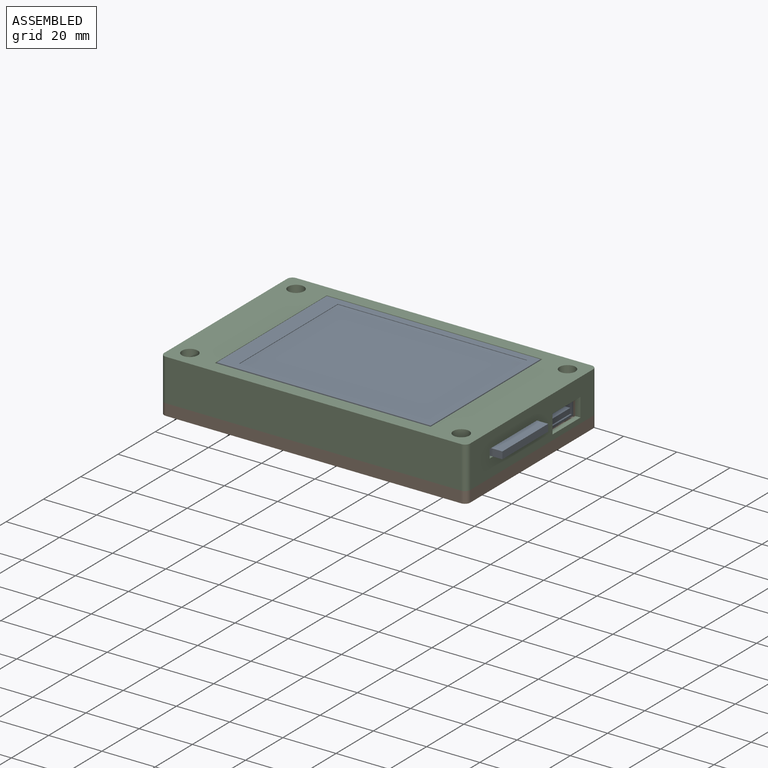
[diagram: assembled view]
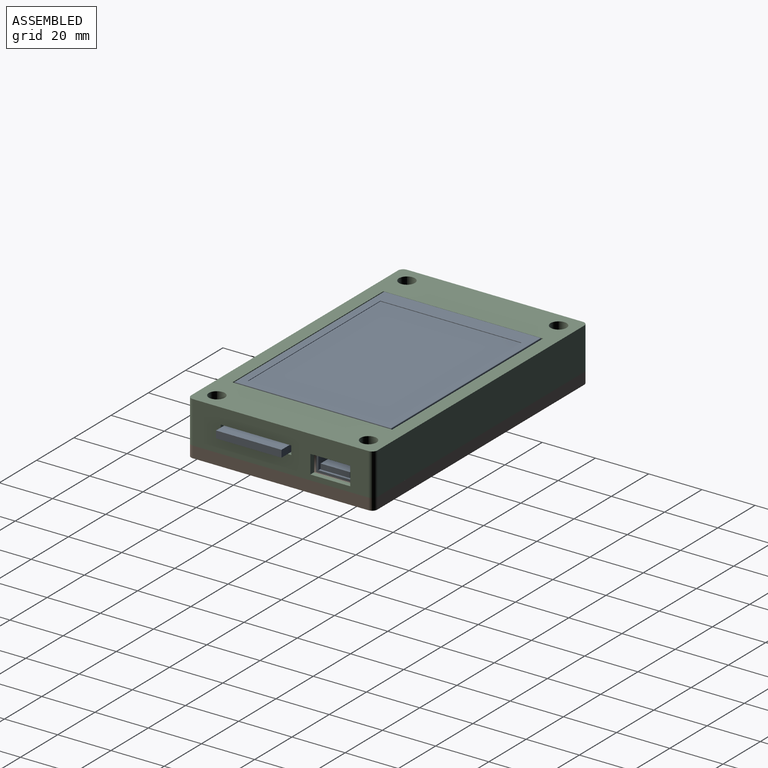
[diagram: assembled view, second angle]
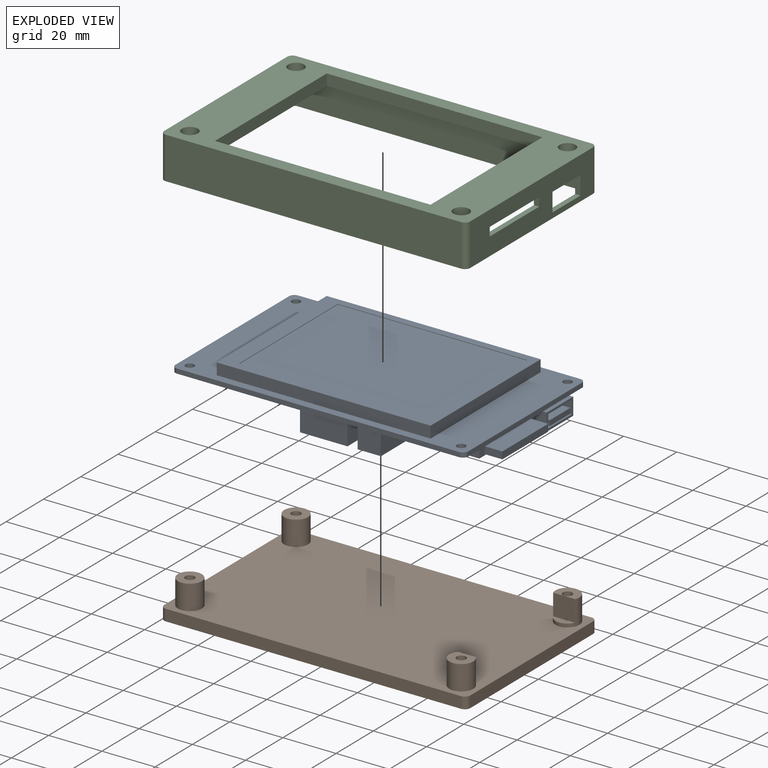
[diagram: exploded view]
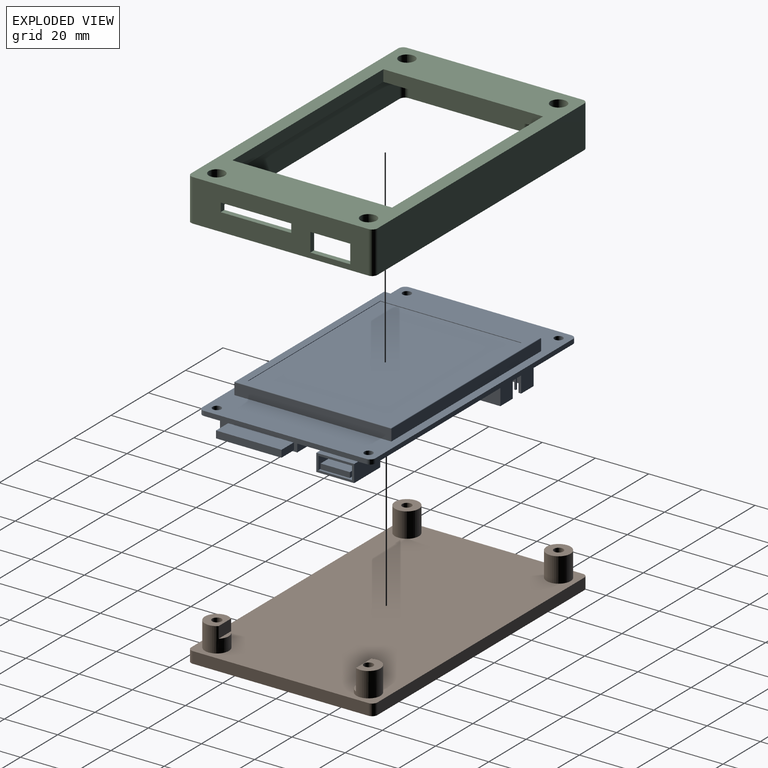
[diagram: exploded view, second angle]
ASSEMBLY  parts=3 mates=2
PART A: 267 faces, bbox 116.5x65x15.5 mm
  f0: plane 110x65mm, normal (0,0,-1), area 5634.7mm2, adj f1,f2,f3,f5,f7,f8,f9,f10
  f1: plane 3.5x0.85mm, normal (0,0,-1), area 1.3mm2, adj f0
  f2: plane 1.35x0.36mm, normal (0,0,-1), area 0.5mm2, adj f0
  f3: plane 3.5x2.65mm, normal (0,0,-1), area 2.4mm2, adj f0
  f4: plane 1.34x1.25mm, normal (0,0,-1), area 0.8mm2, adj f7
  f5: plane 3.59x2.24mm, normal (0,0,-1), area 2.6mm2, adj f0
  f6: plane 2.78x2.24mm, normal (0,0,-1), area 5.5mm2, adj f8
  f7: plane 3.5x3.32mm, normal (0,0,-1), area 2.7mm2, adj f0,f4
  f8: plane 3.5x2.87mm, normal (0,0,-1), area 3.4mm2, adj f0,f6
  f9: plane 3.68x2.06mm, normal (0,0,-1), area 2.4mm2, adj f0
  f10: plane 1.35x0.36mm, normal (0,0,-1), area 0.5mm2, adj f0
  f11: plane 3.5x1.84mm, normal (0,0,-1), area 1.6mm2, adj f0
  f12: plane 3.5x2.65mm, normal (0,0,-1), area 2.4mm2, adj f0
  f13: plane 3.5x1.97mm, normal (0,0,-1), area 2.9mm2, adj f0
  f14: plane 3.5x0.31mm, normal (0,0,-1), area 1.1mm2, adj f0
  f15: plane 3.5x1.71mm, normal (0,0,-1), area 2.1mm2, adj f0
  f16: plane 3.5x0.31mm, normal (0,0,-1), area 1.1mm2, adj f0
  f17: plane 4.08x3.5mm, normal (0,0,-1), area 3.8mm2, adj f0
  f18: plane 29.8x24.88mm, normal (0,0,-1), area 23.4mm2, adj f60,f99,f100,f101,f103,f105,f106
  f19: plane 14.24x6.5mm, normal (1,0,0), area 30.6mm2, adj f20,f21,f80,f81,f86,f87,f88,f89
  f20: plane 14x7.7mm, normal (0,-1,0), area 99.8mm2, adj f0,f19,f79,f80,f81,f82
  f21: plane 14x7.7mm, normal (0,1,0), area 99.8mm2, adj f0,f19,f79,f80,f81,f82
  f22: plane 2.41x1.19mm, normal (0,0,1), area 2.4mm2, adj f24
  f23: plane 110x65mm, normal (0,0,1), area 2307.1mm2, adj f24,f26,f27,f28,f29,f30,f31,f32
  f24: plane 3.12x1.98mm, normal (0,0,1), area 2.7mm2, adj f22,f23
  f25: plane 1.11x0.86mm, normal (0,0,1), area 0.5mm2, adj f27
  f26: plane 0.4x0.4mm, normal (0,0,1), area 0.2mm2, adj f23
  f27: plane 3.04x2.13mm, normal (0,0,1), area 2.6mm2, adj f23,f25
  f28: plane 3.08x2.96mm, normal (0,0,1), area 2.6mm2, adj f23
  f29: plane 3.08x1.9mm, normal (0,0,1), area 1.9mm2, adj f23
  f30: plane 2.45x0.28mm, normal (0,0,1), area 0.7mm2, adj f23
  f31: plane 3.08x2.02mm, normal (0,0,1), area 2.6mm2, adj f23
  f32: plane 3.12x1.98mm, normal (0,0,1), area 2.4mm2, adj f23
  f33: plane 3.08x2.41mm, normal (0,0,1), area 2mm2, adj f23
  f34: plane 3.08x2.05mm, normal (0,0,1), area 2.4mm2, adj f23
  f35: plane 3.08x2.41mm, normal (0,0,1), area 2mm2, adj f23
  f36: plane 3.16x2.41mm, normal (0,0,1), area 3.2mm2, adj f23
  f37: plane 3.08x2.53mm, normal (0,0,1), area 3.2mm2, adj f23
  f38: plane 1.26x0.55mm, normal (0,0,1), area 0.6mm2, adj f40
  f39: plane 3.08x2.96mm, normal (0,0,1), area 4.8mm2, adj f23
  f40: plane 2.33x2.05mm, normal (0,0,1), area 2.5mm2, adj f23,f38
  f41: plane 1.11x0.75mm, normal (0,0,1), area 0.6mm2, adj f44
  f42: plane 2.33x1.82mm, normal (0,0,1), area 2.2mm2, adj f23
  f43: plane 1.62x1.15mm, normal (0,0,1), area 1.5mm2, adj f45
  f44: plane 2.33x2.05mm, normal (0,0,1), area 2.7mm2, adj f23,f41
  f45: plane 3.12x1.94mm, normal (0,0,1), area 2.7mm2, adj f23,f43
  f46: plane 1.26x0.55mm, normal (0,0,1), area 0.6mm2, adj f48
  f47: plane 2.29x1.19mm, normal (0,0,1), area 1.2mm2, adj f23
  f48: plane 2.33x2.05mm, normal (0,0,1), area 2.5mm2, adj f23,f46
  f49: plane 1.11x0.75mm, normal (0,0,1), area 0.6mm2, adj f51
  f50: plane 3.08x1.81mm, normal (0,0,1), area 2.4mm2, adj f23
  f51: plane 2.33x2.05mm, normal (0,0,1), area 2.7mm2, adj f23,f49
  f52: plane 3.08x2.96mm, normal (0,0,1), area 4.8mm2, adj f23
  f53: cylinder r=2mm len=2mm, axis (0,0,-1), area 5.5mm2, adj f0,f23,f54,f60
  f54: plane 106x1.75mm, normal (0,1,0), area 185.5mm2, adj f0,f23,f53,f55
  f55: cylinder r=2mm len=2mm, axis (0,0,-1), area 5.5mm2, adj f0,f23,f54,f56
  f56: plane 61x1.75mm, normal (-1,0,0), area 106.8mm2, adj f0,f23,f55,f57
  f57: cylinder r=2mm len=2mm, axis (0,0,-1), area 5.5mm2, adj f0,f23,f56,f58
  f58: plane 106x1.75mm, normal (0,-1,0), area 185.5mm2, adj f0,f23,f57,f59
  f59: cylinder r=2mm len=2mm, axis (0,0,-1), area 5.5mm2, adj f0,f23,f58,f60
  f60: plane 61x4.75mm, normal (1,0,0), area 119.9mm2, adj f0,f18,f23,f53,f59,f93,f94,f96
  f61: cylinder r=1.6mm len=3.2mm, axis (0,0,-1), area 17.6mm2, adj f0,f23
  f62: cylinder r=1.6mm len=3.2mm, axis (0,0,-1), area 17.6mm2, adj f0,f23
  f63: cylinder r=1.6mm len=3.2mm, axis (0,0,-1), area 17.6mm2, adj f0,f23
  f64: cylinder r=1.6mm len=3.2mm, axis (0,0,-1), area 17.6mm2, adj f0,f23
  f65: plane 59x4.3mm, normal (1,0,0), area 253.7mm2, adj f23,f66,f68,f77
  f66: plane 80.4x4.3mm, normal (0,1,0), area 345.7mm2, adj f23,f65,f67,f75
  f67: plane 59x4.3mm, normal (-1,0,0), area 253.7mm2, adj f23,f66,f68,f76
  f68: plane 80.4x4.3mm, normal (0,-1,0), area 345.7mm2, adj f23,f65,f67,f78
  f69: plane 80x58.6mm, normal (0,0,1), area 919.7mm2, adj f70,f71,f72,f73,f75,f76,f77,f78
  f70: plane 71.1x0.2mm, normal (0,-1,0), area 14.2mm2, adj f69,f71,f73,f74
  f71: plane 53x0.2mm, normal (-1,0,0), area 10.6mm2, adj f69,f70,f72,f74
  f72: plane 71.1x0.2mm, normal (0,1,0), area 14.2mm2, adj f69,f71,f73,f74
  f73: plane 53x0.2mm, normal (1,0,0), area 10.6mm2, adj f69,f70,f72,f74
  f74: plane 71.1x53mm, normal (0,0,1), area 3768.3mm2, adj f70,f71,f72,f73
  f75: cylinder r=0.2mm len=80.4mm, axis (1,0,0), area 25.2mm2, adj f66,f69,f76,f77
  f76: cylinder r=0.2mm len=59mm, axis (0,1,0), area 18.5mm2, adj f67,f69,f75,f78
  f77: cylinder r=0.2mm len=59mm, axis (0,-1,0), area 18.5mm2, adj f65,f69,f75,f78
  f78: cylinder r=0.2mm len=80.4mm, axis (-1,0,0), area 25.2mm2, adj f68,f69,f76,f77
  f79: plane 14.24x7.7mm, normal (-1,0,0), area 109.6mm2, adj f0,f20,f21,f80
  f80: plane 14.24x14mm, normal (0,0,-1), area 199.4mm2, adj f19,f20,f21,f79
  f81: plane 14.24x6.7mm, normal (0,0,1), area 95.4mm2, adj f19,f20,f21,f82
  f82: plane 14.24x1.2mm, normal (1,0,0), area 17.1mm2, adj f0,f20,f21,f81
  f83: plane 6.7x2mm, normal (0,-1,0), area 13.4mm2, adj f84,f90,f91,f92
  f84: plane 11x6.7mm, normal (0,0,-1), area 73.7mm2, adj f83,f85,f91,f92
  f85: plane 6.7x2mm, normal (0,1,0), area 13.4mm2, adj f84,f90,f91,f92
  f86: plane 6.7x4.9mm, normal (0,1,0), area 32.8mm2, adj f19,f87,f89,f91
  f87: plane 12.64x6.7mm, normal (0,0,-1), area 84.7mm2, adj f19,f86,f88,f91
  f88: plane 6.7x4.9mm, normal (0,-1,0), area 32.8mm2, adj f19,f87,f89,f91
  f89: plane 12.64x6.7mm, normal (0,0,1), area 84.7mm2, adj f19,f86,f88,f91
  f90: plane 11x6.7mm, normal (0,0,1), area 73.7mm2, adj f83,f85,f91,f92
  f91: plane 12.64x4.9mm, normal (1,0,0), area 39.9mm2, adj f83,f84,f85,f86,f87,f88,f89,f90
  f92: plane 11x2mm, normal (1,0,0), area 22mm2, adj f83,f84,f85,f90
  f93: cylinder r=10.75mm len=21mm, axis (0,0,1), area 5.8mm2, adj f60,f97,f98
  f94: plane 30x3mm, normal (0,-1,0), area 90mm2, adj f0,f60,f95,f97
  f95: plane 29x3mm, normal (-1,0,0), area 87mm2, adj f0,f94,f96,f97
  f96: plane 30x3mm, normal (0,1,0), area 90mm2, adj f0,f60,f95,f97
  f97: plane 30x29mm, normal (0,0,-1), area 737.9mm2, adj f60,f93,f94,f95,f96
  f98: plane 29.8x24.88mm, normal (0,0,1), area 609.2mm2, adj f60,f93,f99,f100,f101
  f99: plane 29.8x2.8mm, normal (0,-1,0), area 83.4mm2, adj f18,f60,f98,f101
  f100: plane 29.8x2.8mm, normal (0,1,0), area 83.4mm2, adj f18,f60,f98,f101
  f101: plane 24.88x2.8mm, normal (1,0,0), area 69.7mm2, adj f18,f98,f99,f100
  f102: plane 24.59x6.5mm, normal (0,0,1), area 159.8mm2, adj f60,f103,f105,f107
  f103: plane 35.7x2.68mm, normal (0,1,0), area 95.8mm2, adj f18,f102,f104,f106,f107
  f104: plane 35.7x24.59mm, normal (0,0,-1), area 877.7mm2, adj f103,f105,f106,f107
  f105: plane 35.7x2.68mm, normal (0,-1,0), area 95.8mm2, adj f18,f102,f104,f106,f107
  f106: plane 24.59x2.68mm, normal (-1,0,0), area 66mm2, adj f18,f103,f104,f105
  f107: plane 24.59x2.68mm, normal (1,0,0), area 66mm2, adj f102,f103,f104,f105
  f108: plane 17.85x9.25mm, normal (1,0,0), area 165.1mm2, adj f0,f109,f111,f112
  f109: plane 9.25x8.75mm, normal (0,-1,0), area 80.9mm2, adj f0,f108,f110,f112
  f110: plane 17.85x9.25mm, normal (-1,0,0), area 129.1mm2, adj f0,f109,f111,f112,f139,f140,f162
  f111: plane 9.25x8.75mm, normal (0,1,0), area 80.9mm2, adj f0,f108,f110,f112
  f112: plane 17.85x8.75mm, normal (0,0,-1), area 44.7mm2, adj f108,f109,f110,f111,f138,f139,f140,f141
  f113: plane 17.85x9.25mm, normal (0,-1,0), area 165.1mm2, adj f0,f114,f116,f117
  f114: plane 9.25x8.75mm, normal (-1,0,0), area 80.9mm2, adj f0,f113,f115,f117
  f115: plane 17.85x9.25mm, normal (0,1,0), area 129.1mm2, adj f0,f114,f116,f117,f191,f192,f210
  f116: plane 9.25x8.75mm, normal (1,0,0), area 80.9mm2, adj f0,f113,f115,f117
  f117: plane 17.85x8.75mm, normal (0,0,-1), area 44.7mm2, adj f113,f114,f115,f116,f189,f190,f191,f192
  f118: plane 17.85x9.25mm, normal (0,-1,0), area 165.1mm2, adj f0,f119,f121,f122
  f119: plane 9.25x8.75mm, normal (-1,0,0), area 80.9mm2, adj f0,f118,f120,f122
  f120: plane 17.85x9.25mm, normal (0,1,0), area 129.1mm2, adj f0,f119,f121,f122,f239,f240,f258
  f121: plane 9.25x8.75mm, normal (1,0,0), area 80.9mm2, adj f0,f118,f120,f122
  f122: plane 17.85x8.75mm, normal (0,0,-1), area 44.7mm2, adj f118,f119,f120,f121,f237,f238,f239,f240
  f123: plane 8x0.62mm, normal (1,0,0), area 5mm2, adj f124,f161,f162,f170
  f124: plane 8x0.62mm, normal (0,-1,0), area 5mm2, adj f123,f125,f162,f170
  f125: plane 8x0.62mm, normal (-1,0,0), area 5mm2, adj f124,f161,f162,f170
  f126: plane 8x0.62mm, normal (1,0,0), area 5mm2, adj f127,f153,f162,f169
  f127: plane 8x0.62mm, normal (0,-1,0), area 5mm2, adj f126,f128,f162,f169
  f128: plane 8x0.62mm, normal (-1,0,0), area 5mm2, adj f127,f153,f162,f169
  f129: plane 8x0.62mm, normal (1,0,0), area 5mm2, adj f130,f154,f162,f168
  f130: plane 8x0.62mm, normal (0,-1,0), area 5mm2, adj f129,f131,f162,f168
  f131: plane 8x0.62mm, normal (-1,0,0), area 5mm2, adj f130,f154,f162,f168
  f132: plane 8x0.62mm, normal (0,1,0), area 5mm2, adj f133,f155,f162,f167
  f133: plane 8x0.62mm, normal (1,0,0), area 5mm2, adj f132,f134,f162,f167
  f134: plane 8x0.62mm, normal (0,-1,0), area 5mm2, adj f133,f155,f162,f167
  f135: plane 8x0.62mm, normal (1,0,0), area 5mm2, adj f136,f156,f162,f166
  f136: plane 8x0.62mm, normal (0,-1,0), area 5mm2, adj f135,f137,f162,f166
  f137: plane 8x0.62mm, normal (-1,0,0), area 5mm2, adj f136,f156,f162,f166
  f138: plane 8x5.68mm, normal (1,0,0), area 45.4mm2, adj f112,f139,f157,f162
  f139: plane 8x1mm, normal (0,-1,0), area 8mm2, adj f110,f112,f138,f162
  f140: plane 8x1mm, normal (0,1,0), area 8mm2, adj f110,f112,f141,f162
  f141: plane 8x5.68mm, normal (1,0,0), area 45.4mm2, adj f112,f140,f142,f162
  f142: plane 8x6.75mm, normal (0,1,0), area 54mm2, adj f112,f141,f143,f162
  f143: plane 15.85x8mm, normal (-1,0,0), area 126.8mm2, adj f112,f142,f157,f162
  f144: plane 8x0.62mm, normal (1,0,0), area 5mm2, adj f145,f158,f162,f165
  f145: plane 8x0.62mm, normal (0,-1,0), area 5mm2, adj f144,f146,f162,f165
  f146: plane 8x0.62mm, normal (-1,0,0), area 5mm2, adj f145,f158,f162,f165
  f147: plane 8x0.62mm, normal (1,0,0), area 5mm2, adj f148,f159,f162,f164
  f148: plane 8x0.62mm, normal (0,-1,0), area 5mm2, adj f147,f149,f162,f164
  f149: plane 8x0.62mm, normal (-1,0,0), area 5mm2, adj f148,f159,f162,f164
  f150: plane 8x0.62mm, normal (1,0,0), area 5mm2, adj f151,f160,f162,f163
  f151: plane 8x0.62mm, normal (0,-1,0), area 5mm2, adj f150,f152,f162,f163
  f152: plane 8x0.62mm, normal (-1,0,0), area 5mm2, adj f151,f160,f162,f163
  f153: plane 8x0.62mm, normal (0,1,0), area 5mm2, adj f126,f128,f162,f169
  f154: plane 8x0.62mm, normal (0,1,0), area 5mm2, adj f129,f131,f162,f168
  f155: plane 8x0.62mm, normal (-1,0,0), area 5mm2, adj f132,f134,f162,f167
  f156: plane 8x0.62mm, normal (0,1,0), area 5mm2, adj f135,f137,f162,f166
  f157: plane 8x6.75mm, normal (0,-1,0), area 54mm2, adj f112,f138,f143,f162
  f158: plane 8x0.62mm, normal (0,1,0), area 5mm2, adj f144,f146,f162,f165
  f159: plane 8x0.62mm, normal (0,1,0), area 5mm2, adj f147,f149,f162,f164
  f160: plane 8x0.62mm, normal (0,1,0), area 5mm2, adj f150,f152,f162,f163
  f161: plane 8x0.62mm, normal (0,1,0), area 5mm2, adj f123,f125,f162,f170
  f162: plane 15.85x7.75mm, normal (0,0,-1), area 108.4mm2, adj f110,f123,f124,f125,f126,f127,f128,f129
  f163: plane 0.62x0.62mm, normal (0,0,-1), area 0.4mm2, adj f150,f151,f152,f160
  f164: plane 0.62x0.62mm, normal (0,0,-1), area 0.4mm2, adj f147,f148,f149,f159
  f165: plane 0.62x0.62mm, normal (0,0,-1), area 0.4mm2, adj f144,f145,f146,f158
  f166: plane 0.62x0.62mm, normal (0,0,-1), area 0.4mm2, adj f135,f136,f137,f156
  f167: plane 0.62x0.62mm, normal (0,0,-1), area 0.4mm2, adj f132,f133,f134,f155
  f168: plane 0.62x0.62mm, normal (0,0,-1), area 0.4mm2, adj f129,f130,f131,f154
  f169: plane 0.62x0.62mm, normal (0,0,-1), area 0.4mm2, adj f126,f127,f128,f153
  f170: plane 0.62x0.62mm, normal (0,0,-1), area 0.4mm2, adj f123,f124,f125,f161
  f171: plane 8x0.62mm, normal (0,-1,0), area 5mm2, adj f172,f209,f210,f218
  f172: plane 8x0.62mm, normal (-1,0,0), area 5mm2, adj f171,f173,f210,f218
  f173: plane 8x0.62mm, normal (0,1,0), area 5mm2, adj f172,f209,f210,f218
  f174: plane 8x0.62mm, normal (0,-1,0), area 5mm2, adj f175,f201,f210,f217
  f175: plane 8x0.62mm, normal (-1,0,0), area 5mm2, adj f174,f176,f210,f217
  f176: plane 8x0.62mm, normal (0,1,0), area 5mm2, adj f175,f201,f210,f217
  f177: plane 8x0.62mm, normal (0,-1,0), area 5mm2, adj f178,f202,f210,f216
  f178: plane 8x0.62mm, normal (-1,0,0), area 5mm2, adj f177,f179,f210,f216
  f179: plane 8x0.62mm, normal (0,1,0), area 5mm2, adj f178,f202,f210,f216
  f180: plane 8x0.62mm, normal (0,-1,0), area 5mm2, adj f181,f203,f210,f215
  f181: plane 8x0.62mm, normal (-1,0,0), area 5mm2, adj f180,f182,f210,f215
  f182: plane 8x0.62mm, normal (0,1,0), area 5mm2, adj f181,f203,f210,f215
  f183: plane 8x0.62mm, normal (0,-1,0), area 5mm2, adj f184,f204,f210,f214
  f184: plane 8x0.62mm, normal (-1,0,0), area 5mm2, adj f183,f185,f210,f214
  f185: plane 8x0.62mm, normal (0,1,0), area 5mm2, adj f184,f204,f210,f214
  f186: plane 8x0.62mm, normal (0,-1,0), area 5mm2, adj f187,f205,f210,f213
  f187: plane 8x0.62mm, normal (-1,0,0), area 5mm2, adj f186,f188,f210,f213
  f188: plane 8x0.62mm, normal (0,1,0), area 5mm2, adj f187,f205,f210,f213
  f189: plane 8x6.75mm, normal (-1,0,0), area 54mm2, adj f117,f190,f206,f210
  f190: plane 8x5.68mm, normal (0,-1,0), area 45.4mm2, adj f117,f189,f191,f210
  f191: plane 8x1mm, normal (-1,0,0), area 8mm2, adj f115,f117,f190,f210
  f192: plane 8x1mm, normal (1,0,0), area 8mm2, adj f115,f117,f193,f210
  f193: plane 8x5.68mm, normal (0,-1,0), area 45.4mm2, adj f117,f192,f194,f210
  f194: plane 8x6.75mm, normal (1,0,0), area 54mm2, adj f117,f193,f206,f210
  f195: plane 8x0.62mm, normal (0,-1,0), area 5mm2, adj f196,f207,f210,f212
  f196: plane 8x0.62mm, normal (-1,0,0), area 5mm2, adj f195,f197,f210,f212
  f197: plane 8x0.62mm, normal (0,1,0), area 5mm2, adj f196,f207,f210,f212
  f198: plane 8x0.62mm, normal (-1,0,0), area 5mm2, adj f199,f208,f210,f211
  f199: plane 8x0.62mm, normal (0,1,0), area 5mm2, adj f198,f200,f210,f211
  f200: plane 8x0.62mm, normal (1,0,0), area 5mm2, adj f199,f208,f210,f211
  f201: plane 8x0.62mm, normal (1,0,0), area 5mm2, adj f174,f176,f210,f217
  f202: plane 8x0.62mm, normal (1,0,0), area 5mm2, adj f177,f179,f210,f216
  f203: plane 8x0.62mm, normal (1,0,0), area 5mm2, adj f180,f182,f210,f215
  f204: plane 8x0.62mm, normal (1,0,0), area 5mm2, adj f183,f185,f210,f214
  f205: plane 8x0.62mm, normal (1,0,0), area 5mm2, adj f186,f188,f210,f213
  f206: plane 15.85x8mm, normal (0,1,0), area 126.8mm2, adj f117,f189,f194,f210
  f207: plane 8x0.62mm, normal (1,0,0), area 5mm2, adj f195,f197,f210,f212
  f208: plane 8x0.62mm, normal (0,-1,0), area 5mm2, adj f198,f200,f210,f211
  f209: plane 8x0.62mm, normal (1,0,0), area 5mm2, adj f171,f173,f210,f218
  f210: plane 15.85x7.75mm, normal (0,0,-1), area 108.4mm2, adj f115,f171,f172,f173,f174,f175,f176,f177
  f211: plane 0.62x0.62mm, normal (0,0,-1), area 0.4mm2, adj f198,f199,f200,f208
  f212: plane 0.62x0.62mm, normal (0,0,-1), area 0.4mm2, adj f195,f196,f197,f207
  f213: plane 0.62x0.62mm, normal (0,0,-1), area 0.4mm2, adj f186,f187,f188,f205
  f214: plane 0.62x0.62mm, normal (0,0,-1), area 0.4mm2, adj f183,f184,f185,f204
  f215: plane 0.62x0.62mm, normal (0,0,-1), area 0.4mm2, adj f180,f181,f182,f203
  f216: plane 0.62x0.62mm, normal (0,0,-1), area 0.4mm2, adj f177,f178,f179,f202
  f217: plane 0.62x0.62mm, normal (0,0,-1), area 0.4mm2, adj f174,f175,f176,f201
  f218: plane 0.62x0.62mm, normal (0,0,-1), area 0.4mm2, adj f171,f172,f173,f209
  f219: plane 8x0.62mm, normal (0,-1,0), area 5mm2, adj f220,f257,f258,f266
  f220: plane 8x0.62mm, normal (-1,0,0), area 5mm2, adj f219,f221,f258,f266
  f221: plane 8x0.62mm, normal (0,1,0), area 5mm2, adj f220,f257,f258,f266
  f222: plane 8x0.62mm, normal (0,-1,0), area 5mm2, adj f223,f249,f258,f265
  f223: plane 8x0.62mm, normal (-1,0,0), area 5mm2, adj f222,f224,f258,f265
  f224: plane 8x0.62mm, normal (0,1,0), area 5mm2, adj f223,f249,f258,f265
  f225: plane 8x0.62mm, normal (0,-1,0), area 5mm2, adj f226,f250,f258,f264
  f226: plane 8x0.62mm, normal (-1,0,0), area 5mm2, adj f225,f227,f258,f264
  f227: plane 8x0.62mm, normal (0,1,0), area 5mm2, adj f226,f250,f258,f264
  f228: plane 8x0.62mm, normal (0,-1,0), area 5mm2, adj f229,f251,f258,f263
  f229: plane 8x0.62mm, normal (-1,0,0), area 5mm2, adj f228,f230,f258,f263
  f230: plane 8x0.62mm, normal (0,1,0), area 5mm2, adj f229,f251,f258,f263
  f231: plane 8x0.62mm, normal (0,-1,0), area 5mm2, adj f232,f252,f258,f262
  f232: plane 8x0.62mm, normal (-1,0,0), area 5mm2, adj f231,f233,f258,f262
  f233: plane 8x0.62mm, normal (0,1,0), area 5mm2, adj f232,f252,f258,f262
  f234: plane 8x0.62mm, normal (0,-1,0), area 5mm2, adj f235,f253,f258,f261
  f235: plane 8x0.62mm, normal (-1,0,0), area 5mm2, adj f234,f236,f258,f261
  f236: plane 8x0.62mm, normal (0,1,0), area 5mm2, adj f235,f253,f258,f261
  f237: plane 8x6.75mm, normal (-1,0,0), area 54mm2, adj f122,f238,f254,f258
  f238: plane 8x5.68mm, normal (0,-1,0), area 45.4mm2, adj f122,f237,f239,f258
  f239: plane 8x1mm, normal (-1,0,0), area 8mm2, adj f120,f122,f238,f258
  f240: plane 8x1mm, normal (1,0,0), area 8mm2, adj f120,f122,f241,f258
  f241: plane 8x5.68mm, normal (0,-1,0), area 45.4mm2, adj f122,f240,f242,f258
  f242: plane 8x6.75mm, normal (1,0,0), area 54mm2, adj f122,f241,f254,f258
  f243: plane 8x0.62mm, normal (0,-1,0), area 5mm2, adj f244,f255,f258,f260
  f244: plane 8x0.62mm, normal (-1,0,0), area 5mm2, adj f243,f245,f258,f260
  f245: plane 8x0.62mm, normal (0,1,0), area 5mm2, adj f244,f255,f258,f260
  f246: plane 8x0.62mm, normal (-1,0,0), area 5mm2, adj f247,f256,f258,f259
  f247: plane 8x0.62mm, normal (0,1,0), area 5mm2, adj f246,f248,f258,f259
  f248: plane 8x0.62mm, normal (1,0,0), area 5mm2, adj f247,f256,f258,f259
  f249: plane 8x0.62mm, normal (1,0,0), area 5mm2, adj f222,f224,f258,f265
  f250: plane 8x0.62mm, normal (1,0,0), area 5mm2, adj f225,f227,f258,f264
  f251: plane 8x0.62mm, normal (1,0,0), area 5mm2, adj f228,f230,f258,f263
  f252: plane 8x0.62mm, normal (1,0,0), area 5mm2, adj f231,f233,f258,f262
  f253: plane 8x0.62mm, normal (1,0,0), area 5mm2, adj f234,f236,f258,f261
  f254: plane 15.85x8mm, normal (0,1,0), area 126.8mm2, adj f122,f237,f242,f258
  f255: plane 8x0.62mm, normal (1,0,0), area 5mm2, adj f243,f245,f258,f260
  f256: plane 8x0.62mm, normal (0,-1,0), area 5mm2, adj f246,f248,f258,f259
  f257: plane 8x0.62mm, normal (1,0,0), area 5mm2, adj f219,f221,f258,f266
  f258: plane 15.85x7.75mm, normal (0,0,-1), area 108.4mm2, adj f120,f219,f220,f221,f222,f223,f224,f225
  f259: plane 0.62x0.62mm, normal (0,0,-1), area 0.4mm2, adj f246,f247,f248,f256
  f260: plane 0.62x0.62mm, normal (0,0,-1), area 0.4mm2, adj f243,f244,f245,f255
  f261: plane 0.62x0.62mm, normal (0,0,-1), area 0.4mm2, adj f234,f235,f236,f253
  f262: plane 0.62x0.62mm, normal (0,0,-1), area 0.4mm2, adj f231,f232,f233,f252
  f263: plane 0.62x0.62mm, normal (0,0,-1), area 0.4mm2, adj f228,f229,f230,f251
  f264: plane 0.62x0.62mm, normal (0,0,-1), area 0.4mm2, adj f225,f226,f227,f250
  f265: plane 0.62x0.62mm, normal (0,0,-1), area 0.4mm2, adj f222,f223,f224,f249
  f266: plane 0.62x0.62mm, normal (0,0,-1), area 0.4mm2, adj f219,f220,f221,f257
PART B: 26 faces, bbox 115x70x13.6 mm
  f0: plane 9x6.35mm, normal (0,0,1), area 38.4mm2, adj f4,f21,f22
  f1: cylinder r=1.75mm len=13.6mm, axis (0,0,-1), area 149.5mm2, adj f6,f25
  f2: cylinder r=1.75mm len=13.6mm, axis (0,0,-1), area 149.5mm2, adj f6,f18
  f3: cylinder r=1.75mm len=13.6mm, axis (0,0,-1), area 149.5mm2, adj f6,f16
  f4: cylinder r=1.75mm len=13.6mm, axis (0,0,-1), area 149.5mm2, adj f0,f6
  f5: plane 115x70mm, normal (0,0,1), area 7792.1mm2, adj f7,f8,f9,f10,f11,f12,f13,f14
  f6: plane 115x70mm, normal (0,0,-1), area 8008.1mm2, adj f1,f2,f3,f4,f7,f8,f9,f10
  f7: plane 66x4.3mm, normal (1,0,0), area 283.8mm2, adj f5,f6,f11,f12
  f8: plane 111x4.3mm, normal (0,1,0), area 477.3mm2, adj f5,f6,f12,f13
  f9: plane 111x4.3mm, normal (0,-1,0), area 477.3mm2, adj f5,f6,f11,f14
  f10: plane 66x4.3mm, normal (-1,0,0), area 283.8mm2, adj f5,f6,f13,f14
  f11: cylinder r=2mm len=4.3mm, axis (0,0,1), area 13.5mm2, adj f5,f6,f7,f9
  f12: cylinder r=2mm len=4.3mm, axis (0,0,-1), area 13.5mm2, adj f5,f6,f7,f8
  f13: cylinder r=2mm len=4.3mm, axis (0,0,1), area 13.5mm2, adj f5,f6,f8,f10
  f14: cylinder r=2mm len=4.3mm, axis (0,0,-1), area 13.5mm2, adj f5,f6,f9,f10
  f15: cylinder r=4.5mm len=9.3mm, axis (0,0,-1), area 263mm2, adj f5,f16
  f16: plane 9x9mm, normal (0,0,1), area 54mm2, adj f3,f15
  f17: cylinder r=4.5mm len=9.3mm, axis (0,0,-1), area 230.4mm2, adj f5,f18,f19,f20
  f18: plane 9x7.5mm, normal (0,0,1), area 47mm2, adj f2,f17,f20
  f19: plane 6.71x1.5mm, normal (0,0,1), area 7mm2, adj f17,f20
  f20: plane 6.71x4.3mm, normal (0,1,0), area 28.8mm2, adj f17,f18,f19
  f21: cylinder r=4.5mm len=9.3mm, axis (0,0,-1), area 180.4mm2, adj f0,f5,f22,f23
  f22: plane 8.2x8mm, normal (0,-1,0), area 65.6mm2, adj f0,f21,f23
  f23: plane 8.2x2.65mm, normal (0,0,1), area 15.6mm2, adj f21,f22
  f24: cylinder r=4.5mm len=9.3mm, axis (0,0,-1), area 263mm2, adj f5,f25
  f25: plane 9x9mm, normal (0,0,1), area 54mm2, adj f1,f24
PART C: 43 faces, bbox 115x70x15.8 mm
  f0: cylinder r=1.75mm len=3.5mm, axis (0,0,-1), area 13.2mm2, adj f4,f22
  f1: cylinder r=1.75mm len=3.5mm, axis (0,0,-1), area 13.2mm2, adj f4,f24
  f2: cylinder r=1.75mm len=3.5mm, axis (0,0,-1), area 13.2mm2, adj f4,f26
  f3: cylinder r=1.75mm len=3.5mm, axis (0,0,-1), area 13.2mm2, adj f4,f20
  f4: plane 111x66mm, normal (0,0,-1), area 2424.1mm2, adj f0,f1,f2,f3,f5,f6,f7,f8
  f5: plane 60x4.3mm, normal (-1,0,0), area 258mm2, adj f4,f6,f8,f9
  f6: plane 81x4.3mm, normal (0,1,0), area 348.3mm2, adj f4,f5,f7,f9
  f7: plane 60x4.3mm, normal (1,0,0), area 258mm2, adj f4,f6,f8,f9
  f8: plane 81x4.3mm, normal (0,-1,0), area 348.3mm2, adj f4,f5,f7,f9
  f9: plane 115x70mm, normal (0,0,1), area 3073.5mm2, adj f5,f6,f7,f8,f10,f11,f12,f13
  f10: plane 66x15.8mm, normal (1,0,0), area 851.7mm2, adj f9,f18,f31,f32,f35,f36,f37,f38
  f11: plane 111x15.8mm, normal (0,1,0), area 1753.8mm2, adj f9,f18,f32,f33
  f12: plane 111x15.8mm, normal (0,-1,0), area 1753.8mm2, adj f9,f18,f31,f34
  f13: plane 66x15.8mm, normal (-1,0,0), area 1042.8mm2, adj f9,f18,f33,f34
  f14: plane 62x11.5mm, normal (-1,0,0), area 521.9mm2, adj f4,f18,f27,f30,f35,f36,f37,f38
  f15: plane 107x11.5mm, normal (0,1,0), area 1230.5mm2, adj f4,f18,f27,f28
  f16: plane 62x11.5mm, normal (1,0,0), area 713mm2, adj f4,f18,f28,f29
  f17: plane 107x11.5mm, normal (0,-1,0), area 1230.5mm2, adj f4,f18,f29,f30
  f18: plane 115x70mm, normal (0,0,-1), area 724mm2, adj f10,f11,f12,f13,f14,f15,f16,f17
  f19: cylinder r=3mm len=6mm, axis (0,0,1), area 58.4mm2, adj f9,f20
  f20: plane 6x6mm, normal (0,0,1), area 18.7mm2, adj f3,f19
  f21: cylinder r=3mm len=6mm, axis (0,0,1), area 58.4mm2, adj f9,f22
  f22: plane 6x6mm, normal (0,0,1), area 18.7mm2, adj f0,f21
  f23: cylinder r=3mm len=6mm, axis (0,0,1), area 58.4mm2, adj f9,f24
  f24: plane 6x6mm, normal (0,0,1), area 18.7mm2, adj f1,f23
  f25: cylinder r=3mm len=6mm, axis (0,0,1), area 58.4mm2, adj f9,f26
  f26: plane 6x6mm, normal (0,0,1), area 18.7mm2, adj f2,f25
  f27: cylinder r=2mm len=11.5mm, axis (0,0,1), area 36.1mm2, adj f4,f14,f15,f18
  f28: cylinder r=2mm len=11.5mm, axis (0,0,-1), area 36.1mm2, adj f4,f15,f16,f18
  f29: cylinder r=2mm len=11.5mm, axis (0,0,1), area 36.1mm2, adj f4,f16,f17,f18
  f30: cylinder r=2mm len=11.5mm, axis (0,0,-1), area 36.1mm2, adj f4,f14,f17,f18
  f31: cylinder r=2mm len=15.8mm, axis (0,0,1), area 49.6mm2, adj f9,f10,f12,f18
  f32: cylinder r=2mm len=15.8mm, axis (0,0,-1), area 49.6mm2, adj f9,f10,f11,f18
  f33: cylinder r=2mm len=15.8mm, axis (0,0,1), area 49.6mm2, adj f9,f11,f13,f18
  f34: cylinder r=2mm len=15.8mm, axis (0,0,-1), area 49.6mm2, adj f9,f12,f13,f18
  f35: plane 7x2mm, normal (0,1,0), area 14mm2, adj f10,f14,f36,f37
  f36: plane 15x2mm, normal (0,0,-1), area 30mm2, adj f10,f14,f35,f38
  f37: plane 15x2mm, normal (0,0,1), area 30mm2, adj f10,f14,f35,f38
  f38: plane 7x2mm, normal (0,-1,0), area 14mm2, adj f10,f14,f36,f37
  f39: plane 3.25x2mm, normal (0,1,0), area 6.5mm2, adj f10,f14,f40,f41
  f40: plane 26.5x2mm, normal (0,0,-1), area 53mm2, adj f10,f14,f39,f42
  f41: plane 26.5x2mm, normal (0,0,1), area 53mm2, adj f10,f14,f39,f42
  f42: plane 3.25x2mm, normal (0,-1,0), area 6.5mm2, adj f10,f14,f40,f41
PLACE A t=(0,0,-1.75)mm
PLACE B t=(0,0,-15.8)mm
PLACE C at identity
MATE fastened A.f64 <-> C.f3  axis (0,0,1) through (-51,-28.5,0)mm
MATE fastened B.f14 <-> C.f34  axis (0,0,1) through (-55.5,-33,-11.5)mm
